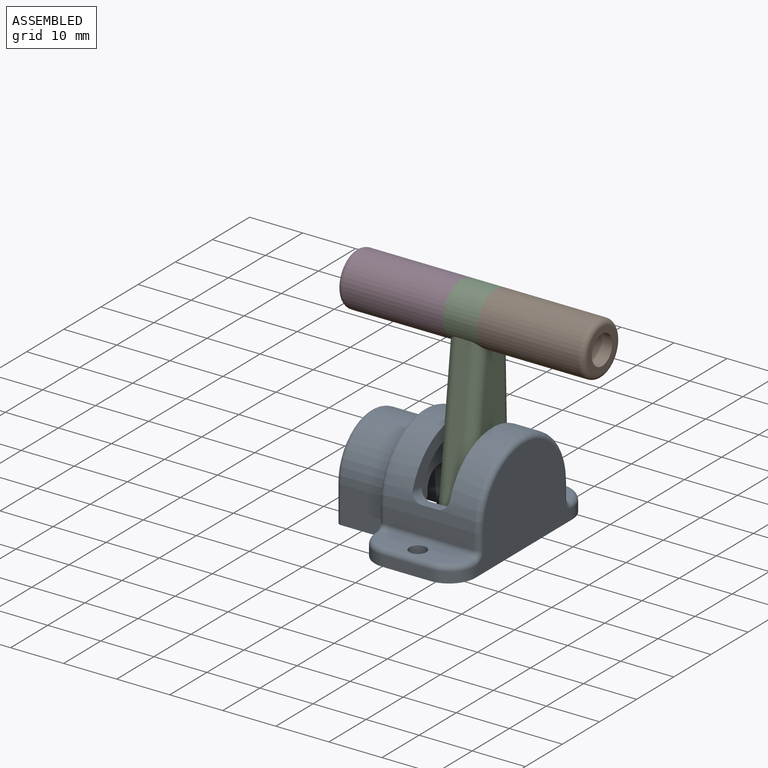
[diagram: assembled view]
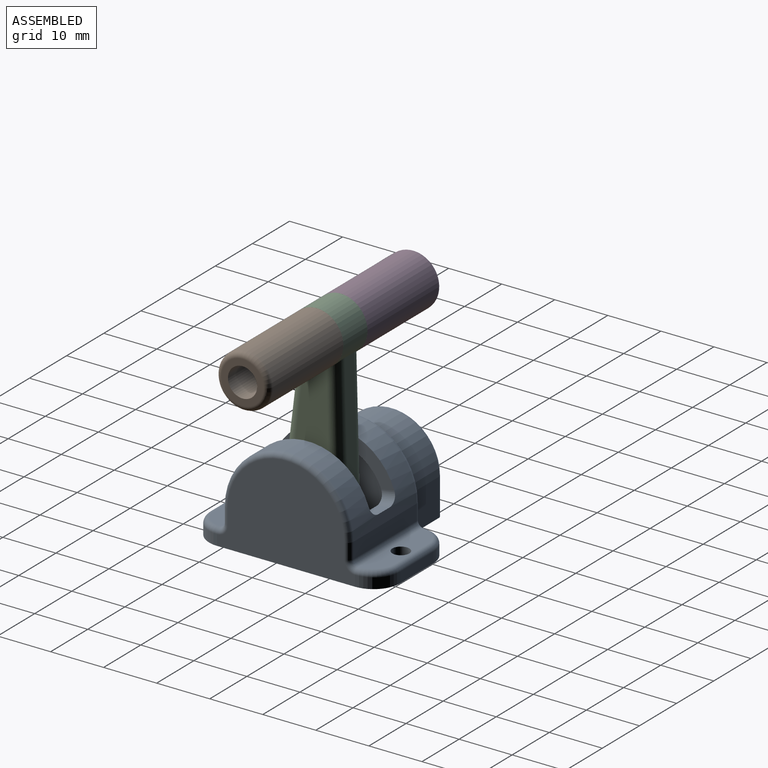
[diagram: assembled view, second angle]
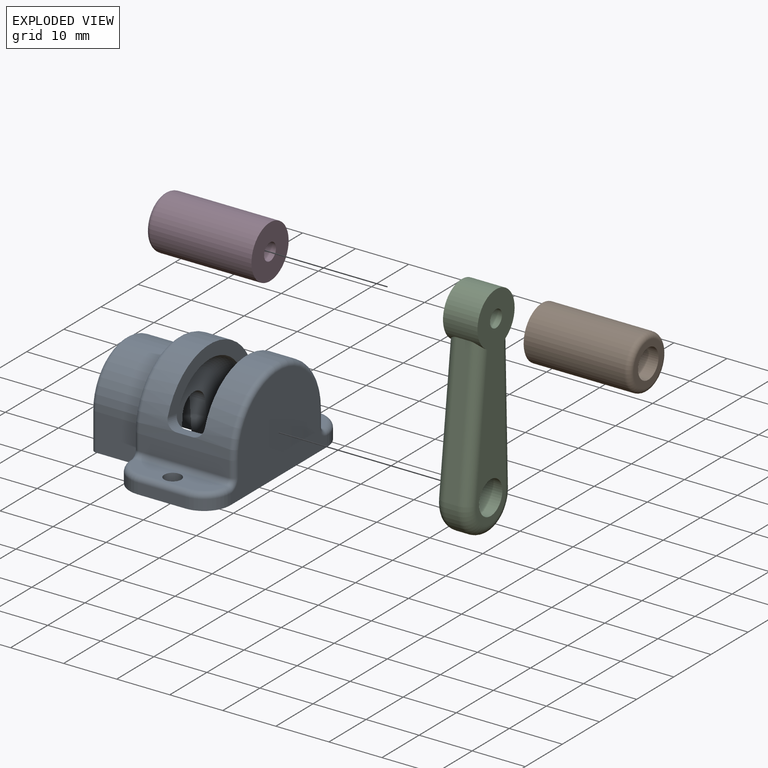
[diagram: exploded view]
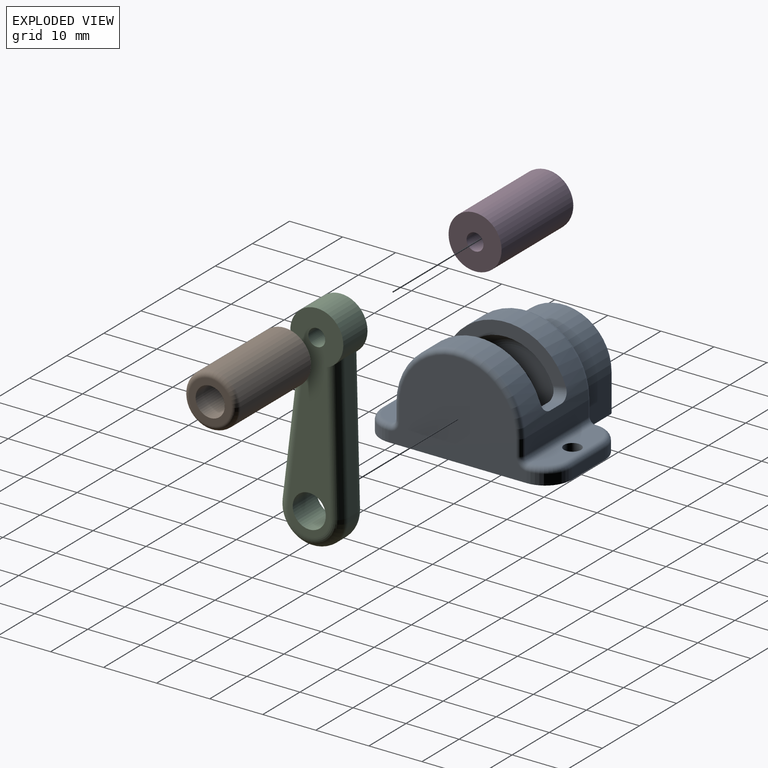
[diagram: exploded view, second angle]
ASSEMBLY  parts=4 mates=3
PART A: 76 faces, bbox 29.4x36.8x20 mm
  f0: cylinder r=9.5mm len=4mm, axis (-1,0,0), area 7.2mm2, adj f10,f13,f21,f72,f74
  f1: plane 12.1x12mm, normal (-1,0,0), area 69.8mm2, adj f4,f7,f32,f65,f66,f67,f68
  f2: plane 26x18mm, normal (-1,0,0), area 47.9mm2, adj f4,f35,f37,f50,f52,f54,f55,f56
  f3: plane 17x3mm, normal (0,-1,0), area 51mm2, adj f9,f40,f45,f56
  f4: plane 36x29mm, normal (0,0,-1), area 511.8mm2, adj f1,f2,f6,f10,f12,f15,f16,f18
  f5: plane 22.67x8.48mm, normal (1,0,0), area 65.4mm2, adj f9,f19,f21,f74
  f6: plane 13.5x13mm, normal (1,0,0), area 94.6mm2, adj f4,f7,f65,f66,f73,f74,f75
  f7: cylinder r=3.1mm len=6.2mm, axis (1,0,0), area 29.2mm2, adj f1,f6,f65,f66
  f8: plane 17x3mm, normal (0,1,0), area 51mm2, adj f9,f39,f41,f52
  f9: cylinder r=12mm len=24mm, axis (1,0,0), area 408.6mm2, adj f3,f5,f8,f13,f14,f15,f19,f20
  f10: plane 7x4mm, normal (0,1,0), area 28mm2, adj f0,f4,f71,f75
  f11: cylinder r=9.5mm len=4mm, axis (-1,0,0), area 7.2mm2, adj f12,f14,f19,f70,f74
  f12: plane 7x4mm, normal (0,-1,0), area 28mm2, adj f4,f11,f69,f73
  f13: plane 3x2.63mm, normal (0,0.17,0.99), area 7.6mm2, adj f0,f9,f21,f22,f72
  f14: plane 3x2.63mm, normal (0,-0.17,0.99), area 7.6mm2, adj f9,f11,f19,f20,f70
  f15: plane 22.67x19mm, normal (-1,0,0), area 215.2mm2, adj f4,f9,f17,f20,f22,f63,f64,f69
  f16: plane 26x18mm, normal (1,0,0), area 353.8mm2, adj f4,f36,f38,f41,f42,f43,f45,f47
  f17: cylinder r=3.1mm len=6.2mm, axis (-1,0,0), area 14.6mm2, adj f15,f18,f63,f64
  f18: plane 10.1x7.43mm, normal (-1,0,0), area 62.8mm2, adj f4,f17,f63,f64
  f19: cylinder r=2mm len=3.01mm, axis (0,-0.99,-0.17), area 7.9mm2, adj f5,f9,f11,f14
  f20: cylinder r=2mm len=6.07mm, axis (0,0.99,0.17), area 12mm2, adj f9,f14,f15,f70
  f21: cylinder r=2mm len=3.01mm, axis (0,-0.99,0.17), area 7.9mm2, adj f0,f5,f9,f13
  f22: cylinder r=2mm len=6.07mm, axis (0,0.99,-0.17), area 12mm2, adj f9,f13,f15,f72
  f23: plane 9x2mm, normal (0,-1,0), area 18mm2, adj f4,f37,f38,f51
  f24: plane 17x4mm, normal (0,0,1), area 53.1mm2, adj f28,f40,f49,f51,f53
  f25: plane 9x2mm, normal (0,1,0), area 18mm2, adj f4,f35,f36,f46
  f26: plane 17x4mm, normal (0,0,1), area 53.1mm2, adj f27,f39,f44,f46,f48
  f27: cylinder r=1.6mm len=3.2mm, axis (0,0,-1), area 30.2mm2, adj f4,f26
  f28: cylinder r=1.6mm len=3.2mm, axis (0,0,-1), area 30.2mm2, adj f4,f24
  f29: plane 8x7mm, normal (0,-1,0), area 56mm2, adj f4,f30,f59,f62
  f30: cylinder r=9.19mm len=18.38mm, axis (1,0,0), area 231mm2, adj f29,f31,f58,f61
  f31: plane 8x7mm, normal (0,1,0), area 56mm2, adj f4,f30,f57,f60
  f32: plane 10x8.5mm, normal (0,0,-1), area 85mm2, adj f1,f34,f67,f68
  f33: plane 16.38x15.19mm, normal (-1,0,0), area 220.1mm2, adj f4,f57,f58,f59
  f34: plane 12.1x12mm, normal (1,0,0), area 132.6mm2, adj f4,f32,f67,f68
  f35: cylinder r=5mm len=5mm, axis (0,0,1), area 15.7mm2, adj f2,f4,f25,f48
  f36: cylinder r=5mm len=5mm, axis (0,0,-1), area 15.7mm2, adj f4,f16,f25,f44
  f37: cylinder r=5mm len=5mm, axis (0,0,-1), area 15.7mm2, adj f2,f4,f23,f53
  f38: cylinder r=5mm len=5mm, axis (0,0,1), area 15.7mm2, adj f4,f16,f23,f49
  f39: cylinder r=1mm len=17mm, axis (1,0,0), area 26.7mm2, adj f8,f26,f42,f50
  f40: cylinder r=1mm len=17mm, axis (1,0,0), area 26.7mm2, adj f3,f24,f47,f55
  f41: cylinder r=1mm len=3mm, axis (0,0,-1), area 4.7mm2, adj f8,f16,f42,f43
  f42: torus R=2mm, axis (1,0,0), area 3.4mm2, adj f16,f39,f41,f44
  f43: torus R=11mm, axis (1,0,0), area 57.4mm2, adj f9,f16,f41,f45
  f44: torus R=4mm, axis (0,0,-1), area 11.4mm2, adj f26,f36,f42,f46
  f45: cylinder r=1mm len=3mm, axis (0,0,-1), area 4.7mm2, adj f3,f16,f43,f47
  f46: cylinder r=1mm len=9mm, axis (-1,0,0), area 14.1mm2, adj f25,f26,f44,f48
  f47: torus R=2mm, axis (1,0,0), area 3.4mm2, adj f16,f40,f45,f49
  f48: torus R=4mm, axis (0,0,-1), area 11.4mm2, adj f26,f35,f46,f50
  f49: torus R=4mm, axis (0,0,-1), area 11.4mm2, adj f24,f38,f47,f51
  f50: torus R=2mm, axis (1,0,0), area 3.4mm2, adj f2,f39,f48,f52
  f51: cylinder r=1mm len=9mm, axis (1,0,0), area 14.1mm2, adj f23,f24,f49,f53
  f52: cylinder r=1mm len=3mm, axis (0,0,-1), area 4.7mm2, adj f2,f8,f50,f54
  f53: torus R=4mm, axis (0,0,-1), area 11.4mm2, adj f24,f37,f51,f55
  f54: torus R=11mm, axis (1,0,0), area 57.4mm2, adj f2,f9,f52,f56
  f55: torus R=2mm, axis (1,0,0), area 3.4mm2, adj f2,f40,f53,f56
  f56: cylinder r=1mm len=3mm, axis (0,0,1), area 4.7mm2, adj f2,f3,f54,f55
  f57: cylinder r=1mm len=7mm, axis (0,0,1), area 11mm2, adj f4,f31,f33,f58
  f58: torus R=8.19mm, axis (-1,0,0), area 43.6mm2, adj f30,f33,f57,f59
  f59: cylinder r=1mm len=7mm, axis (0,0,-1), area 11mm2, adj f4,f29,f33,f58
  f60: cylinder r=1mm len=7mm, axis (0,0,1), area 11mm2, adj f2,f4,f31,f61
  f61: torus R=10.19mm, axis (1,0,0), area 47.2mm2, adj f2,f30,f60,f62
  f62: cylinder r=1mm len=7mm, axis (0,0,-1), area 11mm2, adj f2,f4,f29,f61
  f63: plane 7x1.5mm, normal (0,-1,-0.09), area 10.5mm2, adj f4,f15,f17,f18
  f64: plane 7x1.5mm, normal (0,1,-0.09), area 10.5mm2, adj f4,f15,f17,f18
  f65: plane 7x3mm, normal (0,1,-0.09), area 21.1mm2, adj f1,f4,f6,f7
  f66: plane 7x3mm, normal (0,-1,-0.09), area 21.1mm2, adj f1,f4,f6,f7
  f67: plane 12x8.5mm, normal (0,1,-0.09), area 102.4mm2, adj f1,f4,f32,f34
  f68: plane 12x8.5mm, normal (0,-1,-0.09), area 102.4mm2, adj f1,f4,f32,f34
  f69: cylinder r=3mm len=7mm, axis (0,0,1), area 33mm2, adj f4,f12,f15,f70
  f70: torus R=6.5mm, axis (1,0,0), area 9.4mm2, adj f11,f14,f15,f20,f69
  f71: cylinder r=3mm len=7mm, axis (0,0,-1), area 33mm2, adj f4,f10,f15,f72
  f72: torus R=6.5mm, axis (1,0,0), area 9.4mm2, adj f0,f13,f15,f22,f71
  f73: cylinder r=3mm len=7mm, axis (0,0,-1), area 33mm2, adj f4,f6,f12,f74
  f74: torus R=6.5mm, axis (1,0,0), area 124.5mm2, adj f0,f5,f6,f11,f73,f75
  f75: cylinder r=3mm len=7mm, axis (0,0,1), area 33mm2, adj f4,f6,f10,f74
PART B: 7 faces, bbox 20x10.8x10.8 mm
  f0: cylinder r=5mm len=19mm, axis (-1,0,0), area 596.9mm2, adj f1,f6
  f1: plane 10x10mm, normal (1,0,0), area 70.5mm2, adj f0,f3
  f2: plane 8x8mm, normal (-1,0,0), area 26.5mm2, adj f5,f6
  f3: cylinder r=1.6mm len=5mm, axis (-1,0,0), area 50.3mm2, adj f1,f4
  f4: plane 5.5x5.5mm, normal (-1,0,0), area 15.7mm2, adj f3,f5
  f5: cylinder r=2.75mm len=15mm, axis (-1,0,0), area 259.2mm2, adj f2,f4
  f6: torus R=4mm, axis (1,0,0), area 45.8mm2, adj f0,f2
PART C: 14 faces, bbox 6.5x13x41.9 mm
  f0: plane 27x2.5mm, normal (0,-1,0.07), area 67.7mm2, adj f1,f5,f8,f11
  f1: cylinder r=6mm len=12mm, axis (-1,0,0), area 49.3mm2, adj f0,f2,f9,f12
  f2: plane 27x2.5mm, normal (0,1,0.07), area 67.7mm2, adj f1,f5,f10,f13
  f3: cylinder r=3.12mm len=6.5mm, axis (-1,0,0), area 127.6mm2, adj f6,f7
  f4: cylinder r=1.6mm len=6.5mm, axis (-1,0,0), area 65.3mm2, adj f6,f7
  f5: cylinder r=5mm len=10mm, axis (-1,0,0), area 148.6mm2, adj f0,f2,f6,f7,f8,f10,f11,f13
  f6: plane 39.44x10mm, normal (1,0,0), area 222.1mm2, adj f3,f4,f5,f11,f12,f13
  f7: plane 39.44x10mm, normal (-1,0,0), area 222.1mm2, adj f3,f4,f5,f8,f9,f10
  f8: cylinder r=2mm len=27.15mm, axis (0,-0.07,-1), area 83.1mm2, adj f0,f5,f7,f9
  f9: torus R=4mm, axis (1,0,0), area 54.5mm2, adj f1,f7,f8,f10
  f10: cylinder r=2mm len=27.15mm, axis (0,-0.07,1), area 83.1mm2, adj f2,f5,f7,f9
  f11: cylinder r=2mm len=27.15mm, axis (0,0.07,1), area 83.1mm2, adj f0,f5,f6,f12
  f12: torus R=4mm, axis (1,0,0), area 54.5mm2, adj f1,f6,f11,f13
  f13: cylinder r=2mm len=27.15mm, axis (0,0.07,-1), area 83.1mm2, adj f2,f5,f6,f12
PART D: same geometry as B
PLACE A t=(-0.5,3.22,1.47)mm fixed
PLACE B rot(axis=(0,-1,0.02),180deg) t=(29.24,4.65,31.44)mm
PLACE C rot(axis=(-1,0,0),2.7deg) t=(2.74,3.22,1.47)mm
PLACE D rot(axis=(-1,0,0),2.7deg) t=(-17.26,4.65,31.44)mm
MATE cylindrical C.f3 <-> A.f7  axis (1,0,0) through (9.24,3.22,1.47)mm
MATE fastened C.f4 <-> B.f0  axis (1,0,0) through (9.24,4.65,31.44)mm
MATE fastened C.f4 <-> D.f3  axis (-1,0,0) through (2.74,4.65,31.44)mm
